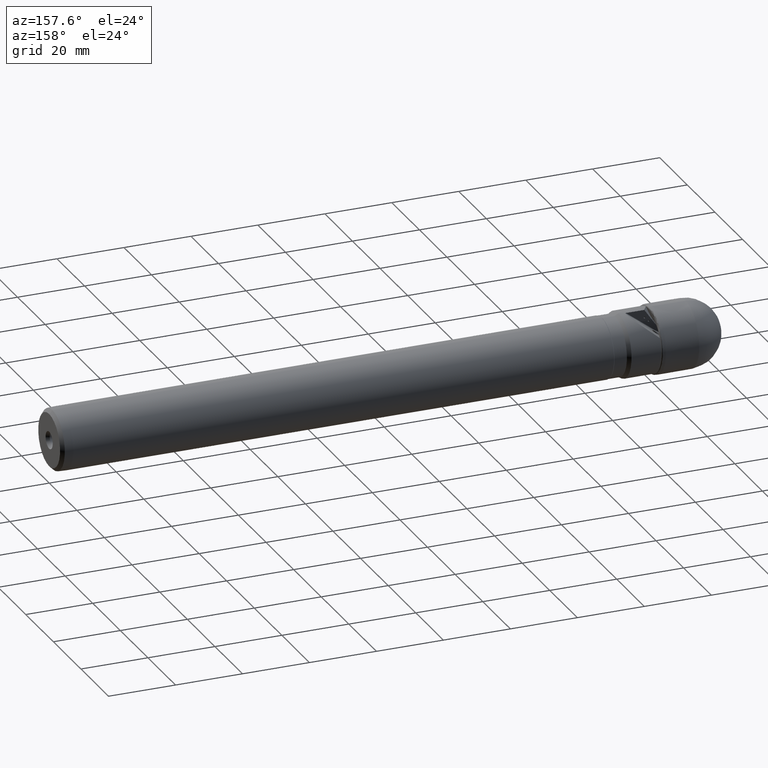
[diagram: clean part render]
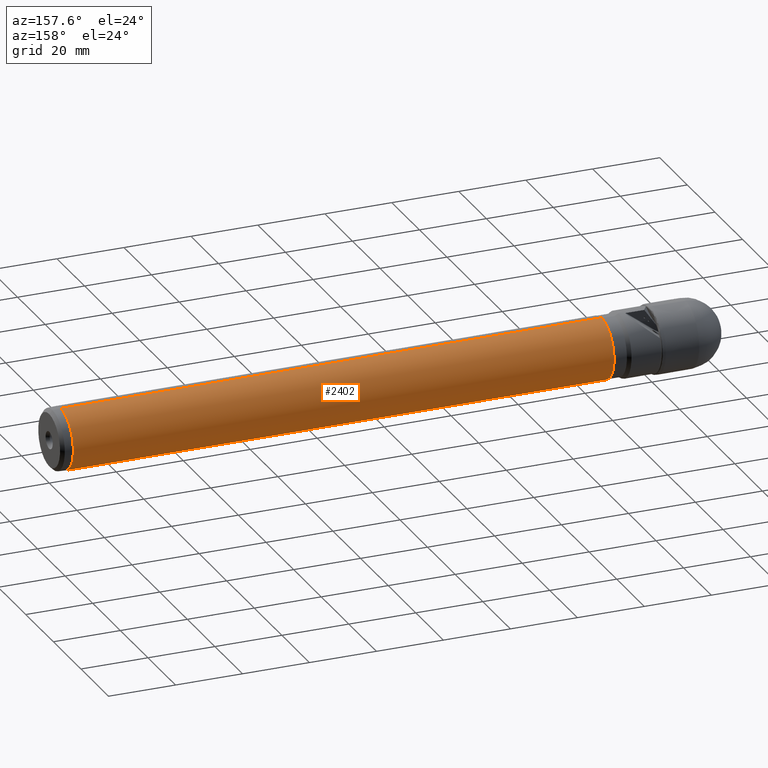
[diagram: same view with one face highlighted and labeled with its STEP entity id]
A machine part, auxiliary view. The second image highlights one B-rep face of the part: STEP entity #2402.
In plain terms, the highlighted cylindrical surface (edge-blend (fillet) strip) has radius 9 mm, axis along (-1, -0, -0).
Its self-contained STEP definition (entity closure, byte-faithful):
#135 = VERTEX_POINT ( 'NONE', #1057 ) ;
#221 = AXIS2_PLACEMENT_3D ( 'NONE', #2551, #1634, #3124 ) ;
#309 = VERTEX_POINT ( 'NONE', #1712 ) ;
#363 = EDGE_CURVE ( 'NONE', #1982, #135, #1396, .T. ) ;
#407 = EDGE_LOOP ( 'NONE', ( #877, #3628, #2863, #3017 ) ) ;
#468 = CARTESIAN_POINT ( 'NONE',  ( 196.5372464299999820, 0.0000000000000000000, 0.0000000000000000000 ) ) ;
#499 = FACE_OUTER_BOUND ( 'NONE', #407, .T. ) ;
#631 = DIRECTION ( 'NONE',  ( -1.000000000000000000, -0.0000000000000000000, -0.0000000000000000000 ) ) ;
#719 = DIRECTION ( 'NONE',  ( 0.0000000000000000000, 0.0000000000000000000, 1.000000000000000000 ) ) ;
#877 = ORIENTED_EDGE ( 'NONE', *, *, #1646, .T. ) ;
#940 = CARTESIAN_POINT ( 'NONE',  ( 196.5372464299999820, 0.0000000000000000000, 9.000000000000000000 ) ) ;
#994 = VECTOR ( 'NONE', #3243, 1000.000000000000000 ) ;
#1057 = CARTESIAN_POINT ( 'NONE',  ( 35.03724642999997485, 1.102182119232615939E-15, -8.999999999999978684 ) ) ;
#1108 = LINE ( 'NONE', #1918, #1696 ) ;
#1132 = EDGE_CURVE ( 'NONE', #1166, #1982, #3298, .T. ) ;
#1166 = VERTEX_POINT ( 'NONE', #940 ) ;
#1255 = CARTESIAN_POINT ( 'NONE',  ( -4.762142644779060241, 0.0000000000000000000, 8.999999999999989342 ) ) ;
#1292 = DIRECTION ( 'NONE',  ( 0.0000000000000000000, 0.0000000000000000000, 1.000000000000000000 ) ) ;
#1396 = CIRCLE ( 'NONE', #1614, 8.999999999999978684 ) ;
#1405 = CYLINDRICAL_SURFACE ( 'NONE', #221, 8.999999999999989342 ) ;
#1588 = DIRECTION ( 'NONE',  ( -1.000000000000000000, -0.0000000000000000000, -0.0000000000000000000 ) ) ;
#1614 = AXIS2_PLACEMENT_3D ( 'NONE', #3584, #631, #1292 ) ;
#1634 = DIRECTION ( 'NONE',  ( -1.000000000000000000, -0.0000000000000000000, -0.0000000000000000000 ) ) ;
#1646 = EDGE_CURVE ( 'NONE', #1166, #309, #2142, .T. ) ;
#1696 = VECTOR ( 'NONE', #2246, 1000.000000000000000 ) ;
#1712 = CARTESIAN_POINT ( 'NONE',  ( 196.5372464299999820, 1.102182119232617714E-15, -9.000000000000000000 ) ) ;
#1788 = EDGE_CURVE ( 'NONE', #309, #135, #1108, .T. ) ;
#1918 = CARTESIAN_POINT ( 'NONE',  ( -4.762142644779060241, 1.102182119232616531E-15, -8.999999999999989342 ) ) ;
#1982 = VERTEX_POINT ( 'NONE', #2153 ) ;
#2142 = CIRCLE ( 'NONE', #2566, 9.000000000000000000 ) ;
#2153 = CARTESIAN_POINT ( 'NONE',  ( 35.03724642999997485, 0.0000000000000000000, 8.999999999999978684 ) ) ;
#2246 = DIRECTION ( 'NONE',  ( -1.000000000000000000, -0.0000000000000000000, -0.0000000000000000000 ) ) ;
#2402 = ADVANCED_FACE ( 'NONE', ( #499 ), #1405, .T. ) ;
#2551 = CARTESIAN_POINT ( 'NONE',  ( -4.762142644779060241, 0.0000000000000000000, 0.0000000000000000000 ) ) ;
#2566 = AXIS2_PLACEMENT_3D ( 'NONE', #468, #1588, #719 ) ;
#2863 = ORIENTED_EDGE ( 'NONE', *, *, #363, .F. ) ;
#3017 = ORIENTED_EDGE ( 'NONE', *, *, #1132, .F. ) ;
#3124 = DIRECTION ( 'NONE',  ( 0.0000000000000000000, 0.0000000000000000000, 1.000000000000000000 ) ) ;
#3243 = DIRECTION ( 'NONE',  ( -1.000000000000000000, -0.0000000000000000000, -0.0000000000000000000 ) ) ;
#3298 = LINE ( 'NONE', #1255, #994 ) ;
#3584 = CARTESIAN_POINT ( 'NONE',  ( 35.03724642999997485, 0.0000000000000000000, 0.0000000000000000000 ) ) ;
#3628 = ORIENTED_EDGE ( 'NONE', *, *, #1788, .T. ) ;